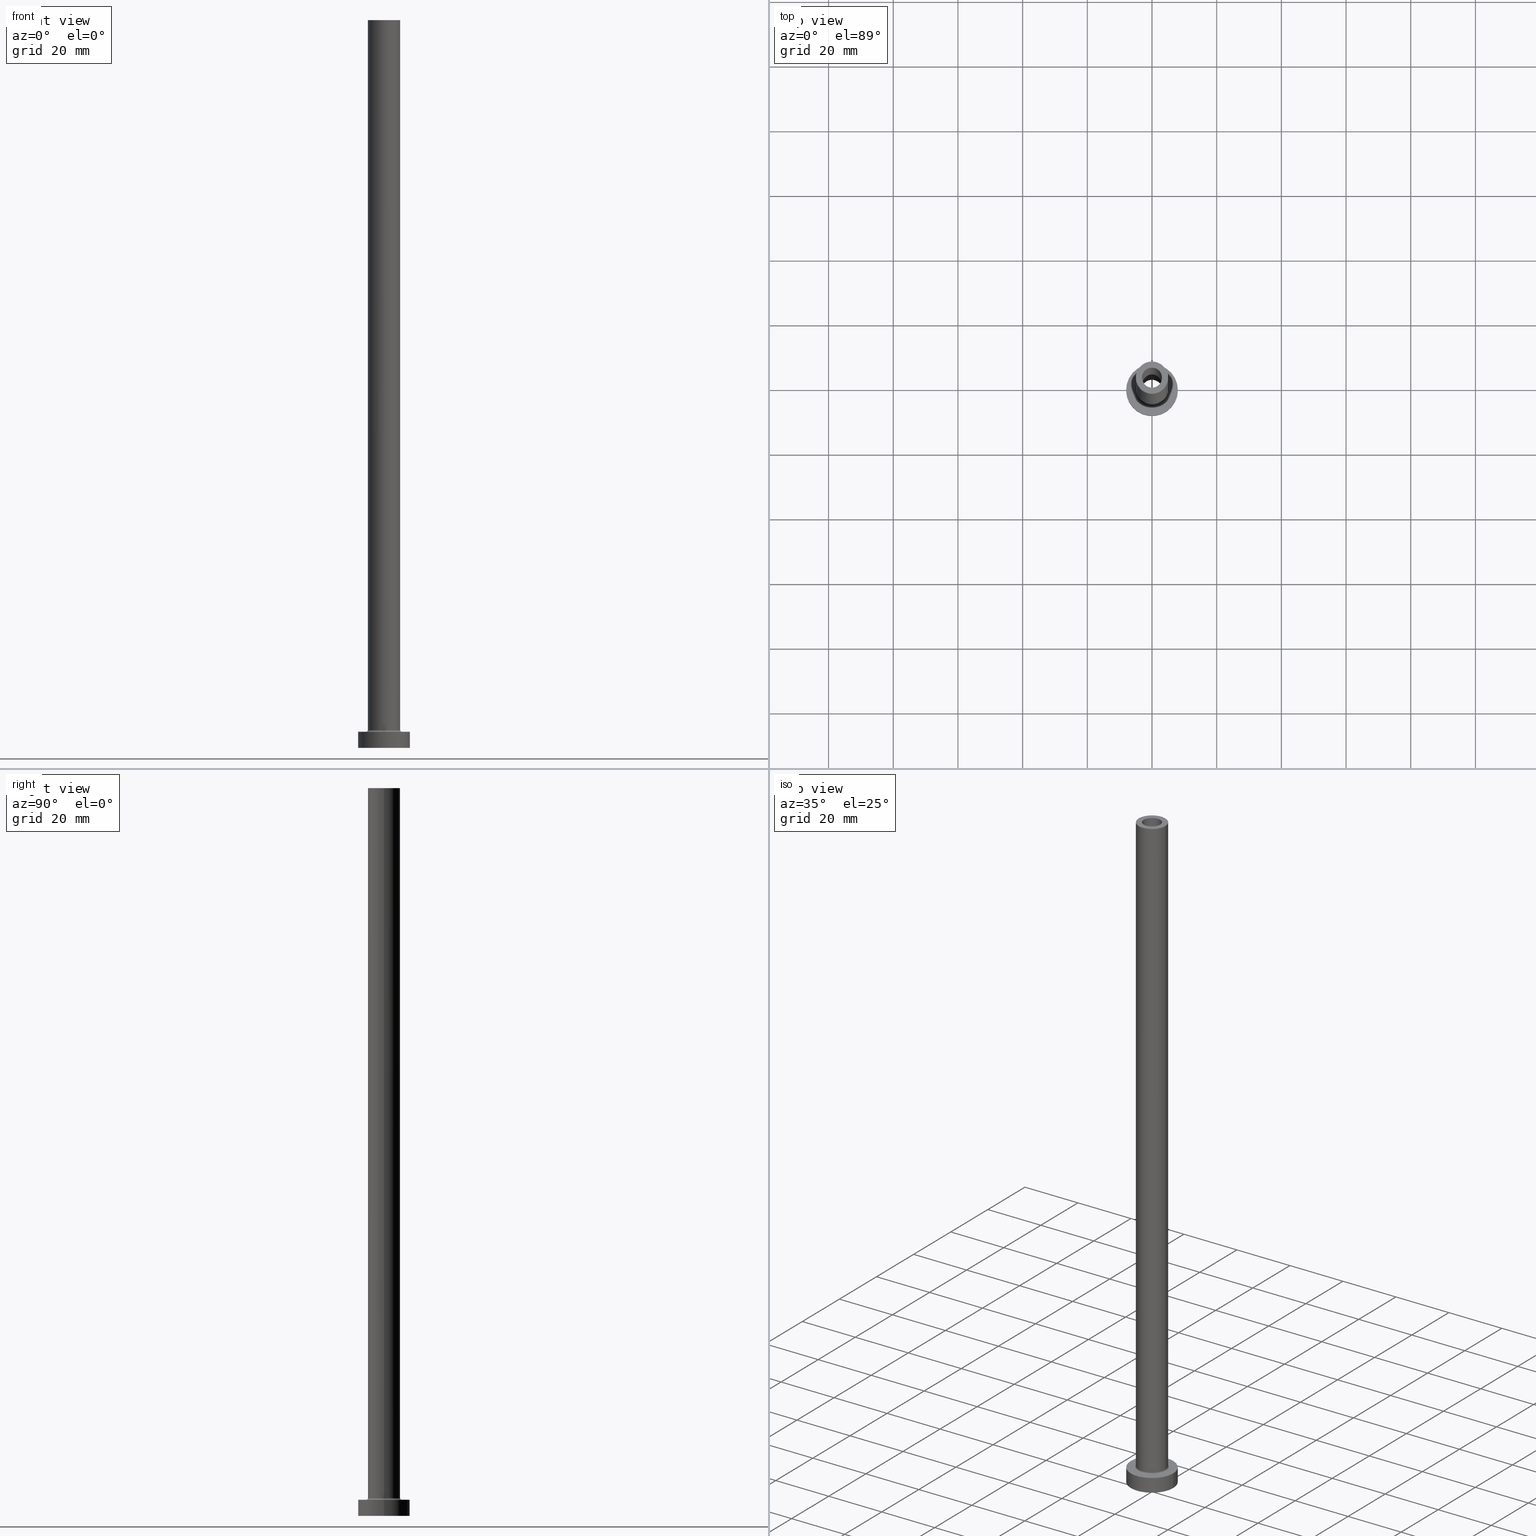
[diagram: canonical four-view strip — front | top / right | iso, engineering-drawing reading convention]
A machine part, canonical four-view strip (front | top / right | iso — engineering-drawing reading convention). The complete STEP part file that produces these views, byte-faithful:
ISO-10303-21;
HEADER;
FILE_DESCRIPTION (( 'STEP AP203' ),
    '1' );
FILE_NAME ('3576.STEP',
    '2023-02-13T14:31:41',
    ( '' ),
    ( '' ),
    'SwSTEP 2.0',
    'SolidWorks 2019',
    '' );
FILE_SCHEMA (( 'CONFIG_CONTROL_DESIGN' ));
ENDSEC;

DATA;
#1 = VERTEX_POINT ( 'NONE', #301 ) ;
#2 = CARTESIAN_POINT ( 'NONE',  ( 0.000000000000000000, 0.000000000000000000, 225.0000000000000000 ) ) ;
#3 = DIRECTION ( 'NONE',  ( 0.000000000000000000, 0.000000000000000000, -1.000000000000000000 ) ) ;
#4 = CARTESIAN_POINT ( 'NONE',  ( -3.250000000000000444, 0.000000000000000000, 0.000000000000000000 ) ) ;
#5 = ADVANCED_FACE ( 'NONE', ( #139 ), #453, .T. ) ;
#6 = APPLICATION_CONTEXT ( 'configuration controlled 3d designs of mechanical parts and assemblies' ) ;
#7 = CARTESIAN_POINT ( 'NONE',  ( 0.000000000000000000, 0.000000000000000000, 5.500000000000005329 ) ) ;
#8 = AXIS2_PLACEMENT_3D ( 'NONE', #438, #10, #245 ) ;
#9 = VECTOR ( 'NONE', #232, 1000.000000000000000 ) ;
#10 = DIRECTION ( 'NONE',  ( 0.000000000000000000, 0.000000000000000000, 1.000000000000000000 ) ) ;
#11 = CC_DESIGN_DATE_AND_TIME_ASSIGNMENT ( #145, #432, ( #94 ) ) ;
#12 = CIRCLE ( 'NONE', #402, 5.000000000000000000 ) ;
#13 = CARTESIAN_POINT ( 'NONE',  ( 0.000000000000000000, 0.000000000000000000, 5.500000000000005329 ) ) ;
#14 = APPROVAL_DATE_TIME ( #219, #366 ) ;
#15 = AXIS2_PLACEMENT_3D ( 'NONE', #361, #52, #441 ) ;
#16 = MANIFOLD_SOLID_BREP ( 'Odebrat vysunut�m4', #224 ) ;
#17 = EDGE_CURVE ( 'NONE', #101, #422, #287, .T. ) ;
#18 = CIRCLE ( 'NONE', #192, 8.000000000000000000 ) ;
#19 = DIRECTION ( 'NONE',  ( 1.000000000000000000, 0.000000000000000000, 0.000000000000000000 ) ) ;
#20 = EDGE_CURVE ( 'NONE', #416, #185, #341, .T. ) ;
#21 = DIRECTION ( 'NONE',  ( 1.000000000000000000, 0.000000000000000000, -0.000000000000000000 ) ) ;
#22 = CARTESIAN_POINT ( 'NONE',  ( -5.000000000000000000, 0.000000000000000000, 225.0000000000000000 ) ) ;
#23 = EDGE_LOOP ( 'NONE', ( #300, #226, #162, #29 ) ) ;
#24 = EDGE_CURVE ( 'NONE', #236, #260, #353, .T. ) ;
#25 = CARTESIAN_POINT ( 'NONE',  ( 0.000000000000000000, 0.000000000000000000, 5.500000000000005329 ) ) ;
#26 = ORIENTED_EDGE ( 'NONE', *, *, #179, .T. ) ;
#27 = VERTEX_POINT ( 'NONE', #389 ) ;
#28 = ORIENTED_EDGE ( 'NONE', *, *, #303, .T. ) ;
#29 = ORIENTED_EDGE ( 'NONE', *, *, #240, .T. ) ;
#30 = EDGE_LOOP ( 'NONE', ( #200, #199 ) ) ;
#31 = DIRECTION ( 'NONE',  ( 0.000000000000000000, 0.000000000000000000, 1.000000000000000000 ) ) ;
#32 = ORIENTED_EDGE ( 'NONE', *, *, #103, .T. ) ;
#33 = DIRECTION ( 'NONE',  ( 1.000000000000000000, 0.000000000000000000, 0.000000000000000000 ) ) ;
#34 = DIRECTION ( 'NONE',  ( 1.000000000000000000, 0.000000000000000000, 0.000000000000000000 ) ) ;
#35 = EDGE_CURVE ( 'NONE', #427, #1, #350, .T. ) ;
#36 = AXIS2_PLACEMENT_3D ( 'NONE', #395, #70, #212 ) ;
#37 = DIRECTION ( 'NONE',  ( 1.000000000000000000, 0.000000000000000000, 0.000000000000000000 ) ) ;
#38 = ORGANIZATION ( 'NEUR�EN�', 'NEUR�EN�', '' ) ;
#39 = FACE_BOUND ( 'NONE', #66, .T. ) ;
#40 = CARTESIAN_POINT ( 'NONE',  ( -8.000000000000000000, 0.000000000000000000, 5.000000000000000000 ) ) ;
#41 = COORDINATED_UNIVERSAL_TIME_OFFSET ( 1, 0, .AHEAD. ) ;
#42 = CIRCLE ( 'NONE', #125, 5.500000000000000000 ) ;
#43 = CALENDAR_DATE ( 2023, 13, 2 ) ;
#44 = DIRECTION ( 'NONE',  ( 1.000000000000000000, 0.000000000000000000, 0.000000000000000000 ) ) ;
#45 = EDGE_CURVE ( 'NONE', #93, #99, #325, .T. ) ;
#46 = CARTESIAN_POINT ( 'NONE',  ( 0.000000000000000000, 0.000000000000000000, 5.000000000000000000 ) ) ;
#47 = APPROVAL_ROLE ( '' ) ;
#48 = PERSON_AND_ORGANIZATION ( #364, #38 ) ;
#49 = EDGE_CURVE ( 'NONE', #304, #27, #60, .T. ) ;
#50 = CIRCLE ( 'NONE', #36, 8.000000000000000000 ) ;
#51 = PERSON_AND_ORGANIZATION_ROLE ( 'design_supplier' ) ;
#52 = DIRECTION ( 'NONE',  ( 0.000000000000000000, 0.000000000000000000, 1.000000000000000000 ) ) ;
#53 = DATE_AND_TIME ( #90, #72 ) ;
#54 = UNCERTAINTY_MEASURE_WITH_UNIT (LENGTH_MEASURE( 1.000000000000000082E-05 ), #109, 'distance_accuracy_value', 'NONE');
#55 = ORIENTED_EDGE ( 'NONE', *, *, #279, .F. ) ;
#56 = VERTEX_POINT ( 'NONE', #345 ) ;
#57 = EDGE_LOOP ( 'NONE', ( #238, #204 ) ) ;
#58 = ORIENTED_EDGE ( 'NONE', *, *, #240, .F. ) ;
#59 = ADVANCED_FACE ( 'NONE', ( #340 ), #172, .T. ) ;
#60 = LINE ( 'NONE', #40, #182 ) ;
#61 = DIRECTION ( 'NONE',  ( -1.000000000000000000, 0.000000000000000000, 0.000000000000000000 ) ) ;
#62 = EDGE_LOOP ( 'NONE', ( #331, #294 ) ) ;
#63 = LINE ( 'NONE', #205, #189 ) ;
#64 = ORIENTED_EDGE ( 'NONE', *, *, #198, .F. ) ;
#65 = AXIS2_PLACEMENT_3D ( 'NONE', #322, #76, #44 ) ;
#66 = EDGE_LOOP ( 'NONE', ( #164, #388 ) ) ;
#67 = ADVANCED_FACE ( 'NONE', ( #173, #269 ), #420, .F. ) ;
#68 = CARTESIAN_POINT ( 'NONE',  ( 0.000000000000000000, 0.000000000000000000, 5.000000000000000000 ) ) ;
#69 = DIRECTION ( 'NONE',  ( -1.000000000000000000, 1.224646799147351482E-16, 0.000000000000000000 ) ) ;
#70 = DIRECTION ( 'NONE',  ( 0.000000000000000000, 0.000000000000000000, 1.000000000000000000 ) ) ;
#71 = FACE_OUTER_BOUND ( 'NONE', #229, .T. ) ;
#72 = LOCAL_TIME ( 15, 31, 41.00000000000000000, #443 ) ;
#73 = DIRECTION ( 'NONE',  ( 0.000000000000000000, 0.000000000000000000, -1.000000000000000000 ) ) ;
#74 = CYLINDRICAL_SURFACE ( 'NONE', #153, 8.000000000000000000 ) ;
#75 = PERSON_AND_ORGANIZATION_ROLE ( 'creator' ) ;
#76 = DIRECTION ( 'NONE',  ( -0.000000000000000000, -0.000000000000000000, -1.000000000000000000 ) ) ;
#77 = AXIS2_PLACEMENT_3D ( 'NONE', #461, #424, #69 ) ;
#78 = CARTESIAN_POINT ( 'NONE',  ( -3.100000000000000089, 0.000000000000000000, 225.0000000000000000 ) ) ;
#79 = CARTESIAN_POINT ( 'NONE',  ( 0.000000000000000000, 0.000000000000000000, 180.0000000000000000 ) ) ;
#80 = CARTESIAN_POINT ( 'NONE',  ( 0.000000000000000000, 0.000000000000000000, 0.000000000000000000 ) ) ;
#81 = APPLICATION_PROTOCOL_DEFINITION ( 'international standard', 'config_control_design', 1994, #262 ) ;
#82 = EDGE_CURVE ( 'NONE', #122, #56, #423, .T. ) ;
#83 = DIRECTION ( 'NONE',  ( 0.000000000000000000, 0.000000000000000000, -1.000000000000000000 ) ) ;
#84 = CARTESIAN_POINT ( 'NONE',  ( 0.000000000000000000, 0.000000000000000000, 5.000000000000000000 ) ) ;
#85 = EDGE_CURVE ( 'NONE', #455, #95, #63, .T. ) ;
#86 = DIRECTION ( 'NONE',  ( 1.000000000000000000, 0.000000000000000000, 0.000000000000000000 ) ) ;
#87 = FACE_OUTER_BOUND ( 'NONE', #57, .T. ) ;
#88 = VECTOR ( 'NONE', #297, 1000.000000000000000 ) ;
#89 = VECTOR ( 'NONE', #146, 1000.000000000000000 ) ;
#90 = CALENDAR_DATE ( 2023, 13, 2 ) ;
#91 = ORIENTED_EDGE ( 'NONE', *, *, #82, .F. ) ;
#92 = AXIS2_PLACEMENT_3D ( 'NONE', #84, #188, #105 ) ;
#93 = VERTEX_POINT ( 'NONE', #78 ) ;
#94 = PRODUCT_DEFINITION ( 'NEZN�M�', '', #181, #414 ) ;
#95 = VERTEX_POINT ( 'NONE', #292 ) ;
#96 = DIRECTION ( 'NONE',  ( -0.000000000000000000, -0.000000000000000000, -1.000000000000000000 ) ) ;
#97 = CARTESIAN_POINT ( 'NONE',  ( 0.000000000000000000, 0.000000000000000000, 180.0000000000000000 ) ) ;
#98 = ORIENTED_EDGE ( 'NONE', *, *, #266, .F. ) ;
#99 = VERTEX_POINT ( 'NONE', #369 ) ;
#100 = CARTESIAN_POINT ( 'NONE',  ( 5.000000000000000000, 6.123233995736766282E-16, 225.0000000000000000 ) ) ;
#101 = VERTEX_POINT ( 'NONE', #332 ) ;
#102 = FACE_OUTER_BOUND ( 'NONE', #197, .T. ) ;
#103 = EDGE_CURVE ( 'NONE', #455, #236, #196, .T. ) ;
#104 = AXIS2_PLACEMENT_3D ( 'NONE', #25, #263, #19 ) ;
#105 = DIRECTION ( 'NONE',  ( 1.000000000000000000, 0.000000000000000000, 0.000000000000000000 ) ) ;
#106 = FACE_OUTER_BOUND ( 'NONE', #426, .T. ) ;
#107 = DIRECTION ( 'NONE',  ( 1.000000000000000000, 0.000000000000000000, 0.000000000000000000 ) ) ;
#108 = CARTESIAN_POINT ( 'NONE',  ( 0.000000000000000000, 0.000000000000000000, 5.000000000000000000 ) ) ;
#109 =( LENGTH_UNIT ( ) NAMED_UNIT ( * ) SI_UNIT ( .MILLI., .METRE. ) );
#110 = DIRECTION ( 'NONE',  ( 0.000000000000000000, 0.000000000000000000, 1.000000000000000000 ) ) ;
#111 = CARTESIAN_POINT ( 'NONE',  ( 0.000000000000000000, 0.000000000000000000, 180.0000000000000000 ) ) ;
#112 = APPROVAL_STATUS ( 'not_yet_approved' ) ;
#113 = PRODUCT_RELATED_PRODUCT_CATEGORY ( 'detail', '', ( #137 ) ) ;
#114 = DIRECTION ( 'NONE',  ( 1.000000000000000000, 0.000000000000000000, 0.000000000000000000 ) ) ;
#115 = AXIS2_PLACEMENT_3D ( 'NONE', #46, #250, #398 ) ;
#116 = EDGE_CURVE ( 'NONE', #427, #122, #454, .T. ) ;
#117 = DIRECTION ( 'NONE',  ( -1.000000000000000000, 0.000000000000000000, 0.000000000000000000 ) ) ;
#118 = CALENDAR_DATE ( 2023, 13, 2 ) ;
#119 = LINE ( 'NONE', #144, #412 ) ;
#120 = PERSON_AND_ORGANIZATION_ROLE ( 'classification_officer' ) ;
#121 = APPROVAL_PERSON_ORGANIZATION ( #436, #190, #434 ) ;
#122 = VERTEX_POINT ( 'NONE', #222 ) ;
#123 = APPROVAL_ROLE ( '' ) ;
#124 = EDGE_CURVE ( 'NONE', #101, #304, #372, .T. ) ;
#125 = AXIS2_PLACEMENT_3D ( 'NONE', #356, #214, #392 ) ;
#126 = ORIENTED_EDGE ( 'NONE', *, *, #399, .T. ) ;
#127 = AXIS2_PLACEMENT_3D ( 'NONE', #311, #428, #37 ) ;
#128 = AXIS2_PLACEMENT_3D ( 'NONE', #111, #110, #143 ) ;
#129 = APPROVAL ( #447, 'NEUR�EN�' ) ;
#130 = ORIENTED_EDGE ( 'NONE', *, *, #198, .T. ) ;
#131 = FACE_BOUND ( 'NONE', #233, .T. ) ;
#132 = ORIENTED_EDGE ( 'NONE', *, *, #193, .T. ) ;
#133 = ORIENTED_EDGE ( 'NONE', *, *, #360, .T. ) ;
#134 = DIRECTION ( 'NONE',  ( 0.000000000000000000, 0.000000000000000000, 1.000000000000000000 ) ) ;
#135 = AXIS2_PLACEMENT_3D ( 'NONE', #108, #282, #228 ) ;
#136 = ORIENTED_EDGE ( 'NONE', *, *, #315, .F. ) ;
#137 = PRODUCT ( '3576', '3576', '', ( #148 ) ) ;
#138 = DIRECTION ( 'NONE',  ( 1.000000000000000000, 0.000000000000000000, 0.000000000000000000 ) ) ;
#139 = FACE_OUTER_BOUND ( 'NONE', #451, .T. ) ;
#140 = ORIENTED_EDGE ( 'NONE', *, *, #303, .F. ) ;
#141 = CC_DESIGN_APPROVAL ( #366, ( #181 ) ) ;
#142 = DIRECTION ( 'NONE',  ( -0.000000000000000000, -0.000000000000000000, -1.000000000000000000 ) ) ;
#143 = DIRECTION ( 'NONE',  ( 1.000000000000000000, 0.000000000000000000, 0.000000000000000000 ) ) ;
#144 = CARTESIAN_POINT ( 'NONE',  ( -3.100000000000000089, 0.000000000000000000, 225.0000000000000000 ) ) ;
#145 = DATE_AND_TIME ( #363, #157 ) ;
#146 = DIRECTION ( 'NONE',  ( 0.000000000000000000, 0.000000000000000000, -1.000000000000000000 ) ) ;
#147 = ADVANCED_FACE ( 'NONE', ( #313 ), #421, .F. ) ;
#148 = MECHANICAL_CONTEXT ( 'NONE', #6, 'mechanical' ) ;
#149 = CIRCLE ( 'NONE', #170, 3.100000000000000089 ) ;
#150 = DIRECTION ( 'NONE',  ( 0.000000000000000000, 0.000000000000000000, 1.000000000000000000 ) ) ;
#151 = PERSON_AND_ORGANIZATION ( #364, #38 ) ;
#152 = EDGE_CURVE ( 'NONE', #99, #93, #329, .T. ) ;
#153 = AXIS2_PLACEMENT_3D ( 'NONE', #68, #343, #348 ) ;
#154 = CARTESIAN_POINT ( 'NONE',  ( 0.000000000000000000, 0.000000000000000000, 225.0000000000000000 ) ) ;
#155 = CARTESIAN_POINT ( 'NONE',  ( 8.000000000000000000, 9.797174393178825657E-16, 0.000000000000000000 ) ) ;
#156 = ORIENTED_EDGE ( 'NONE', *, *, #281, .T. ) ;
#157 = LOCAL_TIME ( 15, 31, 41.00000000000000000, #41 ) ;
#158 = SHAPE_DEFINITION_REPRESENTATION ( #208, #275 ) ;
#159 = PLANE ( 'NONE',  #346 ) ;
#160 = DIRECTION ( 'NONE',  ( 0.000000000000000000, 0.000000000000000000, 1.000000000000000000 ) ) ;
#161 = CARTESIAN_POINT ( 'NONE',  ( -3.250000000000000444, 0.000000000000000000, 180.0000000000000000 ) ) ;
#162 = ORIENTED_EDGE ( 'NONE', *, *, #49, .T. ) ;
#163 = ORIENTED_EDGE ( 'NONE', *, *, #291, .T. ) ;
#164 = ORIENTED_EDGE ( 'NONE', *, *, #45, .F. ) ;
#165 = LOCAL_TIME ( 15, 31, 41.00000000000000000, #404 ) ;
#166 = ORIENTED_EDGE ( 'NONE', *, *, #24, .F. ) ;
#167 = DIRECTION ( 'NONE',  ( 0.000000000000000000, 0.000000000000000000, 1.000000000000000000 ) ) ;
#168 = FACE_OUTER_BOUND ( 'NONE', #458, .T. ) ;
#169 = DIRECTION ( 'NONE',  ( 1.000000000000000000, 0.000000000000000000, 0.000000000000000000 ) ) ;
#170 = AXIS2_PLACEMENT_3D ( 'NONE', #79, #437, #431 ) ;
#171 = ORIENTED_EDGE ( 'NONE', *, *, #116, .F. ) ;
#172 = CYLINDRICAL_SURFACE ( 'NONE', #406, 5.000000000000000000 ) ;
#173 = FACE_BOUND ( 'NONE', #277, .T. ) ;
#174 = CARTESIAN_POINT ( 'NONE',  ( 5.500000000000000000, 0.000000000000000000, 5.000000000000002665 ) ) ;
#175 = CC_DESIGN_PERSON_AND_ORGANIZATION_ASSIGNMENT ( #357, #248, ( #94 ) ) ;
#176 = AXIS2_PLACEMENT_3D ( 'NONE', #448, #160, #33 ) ;
#177 = DIRECTION ( 'NONE',  ( -1.000000000000000000, 0.000000000000000000, 0.000000000000000000 ) ) ;
#178 = CARTESIAN_POINT ( 'NONE',  ( 0.000000000000000000, 0.000000000000000000, 189.1923881554251068 ) ) ;
#179 = EDGE_CURVE ( 'NONE', #1, #416, #390, .T. ) ;
#180 = PERSON_AND_ORGANIZATION ( #364, #38 ) ;
#181 = PRODUCT_DEFINITION_FORMATION_WITH_SPECIFIED_SOURCE ( 'LIBOVOLN�', '', #137, .NOT_KNOWN. ) ;
#182 = VECTOR ( 'NONE', #386, 1000.000000000000000 ) ;
#183 = DATE_TIME_ROLE ( 'classification_date' ) ;
#184 = AXIS2_PLACEMENT_3D ( 'NONE', #411, #373, #21 ) ;
#185 = VERTEX_POINT ( 'NONE', #174 ) ;
#186 = ORIENTED_EDGE ( 'NONE', *, *, #82, .T. ) ;
#187 = ADVANCED_FACE ( 'NONE', ( #102 ), #239, .F. ) ;
#188 = DIRECTION ( 'NONE',  ( -0.000000000000000000, -0.000000000000000000, -1.000000000000000000 ) ) ;
#189 = VECTOR ( 'NONE', #258, 1000.000000000000000 ) ;
#190 = APPROVAL ( #326, 'NEUR�EN�' ) ;
#191 = PLANE ( 'NONE',  #184 ) ;
#192 = AXIS2_PLACEMENT_3D ( 'NONE', #235, #383, #169 ) ;
#193 = EDGE_CURVE ( 'NONE', #227, #349, #149, .T. ) ;
#194 = CARTESIAN_POINT ( 'NONE',  ( -5.500000000000000000, 6.735557395310442023E-16, 5.000000000000002665 ) ) ;
#195 = FACE_OUTER_BOUND ( 'NONE', #307, .T. ) ;
#196 = CIRCLE ( 'NONE', #15, 3.250000000000000444 ) ;
#197 = EDGE_LOOP ( 'NONE', ( #413, #452, #380, #55 ) ) ;
#198 = EDGE_CURVE ( 'NONE', #422, #27, #374, .T. ) ;
#199 = ORIENTED_EDGE ( 'NONE', *, *, #399, .F. ) ;
#200 = ORIENTED_EDGE ( 'NONE', *, *, #281, .F. ) ;
#201 = ORIENTED_EDGE ( 'NONE', *, *, #35, .T. ) ;
#202 = DIRECTION ( 'NONE',  ( 0.000000000000000000, 0.000000000000000000, -1.000000000000000000 ) ) ;
#203 = EDGE_CURVE ( 'NONE', #1, #56, #358, .T. ) ;
#204 = ORIENTED_EDGE ( 'NONE', *, *, #355, .T. ) ;
#205 = CARTESIAN_POINT ( 'NONE',  ( 3.250000000000000444, 3.980102097228897245E-16, 189.1923881554251068 ) ) ;
#206 = ORIENTED_EDGE ( 'NONE', *, *, #85, .F. ) ;
#207 = CIRCLE ( 'NONE', #128, 3.100000000000000089 ) ;
#208 = PRODUCT_DEFINITION_SHAPE ( 'NONE', 'NONE',  #94 ) ;
#209 = ORIENTED_EDGE ( 'NONE', *, *, #362, .F. ) ;
#210 = CC_DESIGN_PERSON_AND_ORGANIZATION_ASSIGNMENT ( #216, #120, ( #385 ) ) ;
#211 = VECTOR ( 'NONE', #237, 1000.000000000000000 ) ;
#212 = DIRECTION ( 'NONE',  ( 1.000000000000000000, 0.000000000000000000, 0.000000000000000000 ) ) ;
#213 = APPLICATION_PROTOCOL_DEFINITION ( 'international standard', 'config_control_design', 1994, #6 ) ;
#214 = DIRECTION ( 'NONE',  ( -0.000000000000000000, -0.000000000000000000, -1.000000000000000000 ) ) ;
#215 = AXIS2_PLACEMENT_3D ( 'NONE', #80, #280, #107 ) ;
#216 = PERSON_AND_ORGANIZATION ( #364, #38 ) ;
#217 = DATE_AND_TIME ( #118, #218 ) ;
#218 = LOCAL_TIME ( 15, 31, 41.00000000000000000, #321 ) ;
#219 = DATE_AND_TIME ( #400, #165 ) ;
#220 = DIRECTION ( 'NONE',  ( 0.000000000000000000, 0.000000000000000000, 1.000000000000000000 ) ) ;
#221 = SECURITY_CLASSIFICATION_LEVEL ( 'unclassified' ) ;
#222 = CARTESIAN_POINT ( 'NONE',  ( 5.000000000000000000, 6.123233995736766282E-16, 225.0000000000000000 ) ) ;
#223 = CC_DESIGN_SECURITY_CLASSIFICATION ( #385, ( #181 ) ) ;
#224 = CLOSED_SHELL ( 'NONE', ( #187, #327, #459, #5, #338, #254, #225, #253, #59, #401, #440, #147, #67, #376 ) ) ;
#225 = ADVANCED_FACE ( 'NONE', ( #131, #168 ), #336, .T. ) ;
#226 = ORIENTED_EDGE ( 'NONE', *, *, #360, .F. ) ;
#227 = VERTEX_POINT ( 'NONE', #268 ) ;
#228 = DIRECTION ( 'NONE',  ( 1.000000000000000000, 0.000000000000000000, -0.000000000000000000 ) ) ;
#229 = EDGE_LOOP ( 'NONE', ( #98, #334, #384, #140 ) ) ;
#230 = AXIS2_PLACEMENT_3D ( 'NONE', #371, #444, #309 ) ;
#231 = ORIENTED_EDGE ( 'NONE', *, *, #203, .T. ) ;
#232 = DIRECTION ( 'NONE',  ( -0.000000000000000000, -0.000000000000000000, -1.000000000000000000 ) ) ;
#233 = EDGE_LOOP ( 'NONE', ( #278, #241 ) ) ;
#234 = CC_DESIGN_PERSON_AND_ORGANIZATION_ASSIGNMENT ( #365, #51, ( #181 ) ) ;
#235 = CARTESIAN_POINT ( 'NONE',  ( 0.000000000000000000, 0.000000000000000000, 5.000000000000000000 ) ) ;
#236 = VERTEX_POINT ( 'NONE', #161 ) ;
#237 = DIRECTION ( 'NONE',  ( -0.000000000000000000, -0.000000000000000000, -1.000000000000000000 ) ) ;
#238 = ORIENTED_EDGE ( 'NONE', *, *, #116, .T. ) ;
#239 = CYLINDRICAL_SURFACE ( 'NONE', #367, 3.100000000000000089 ) ;
#240 = EDGE_CURVE ( 'NONE', #27, #422, #50, .T. ) ;
#241 = ORIENTED_EDGE ( 'NONE', *, *, #20, .T. ) ;
#242 = CARTESIAN_POINT ( 'NONE',  ( -3.250000000000000444, 0.000000000000000000, 189.1923881554251068 ) ) ;
#243 = CIRCLE ( 'NONE', #215, 3.250000000000000444 ) ;
#244 = FACE_OUTER_BOUND ( 'NONE', #23, .T. ) ;
#245 = DIRECTION ( 'NONE',  ( 1.000000000000000000, 0.000000000000000000, 0.000000000000000000 ) ) ;
#246 = DIRECTION ( 'NONE',  ( 0.000000000000000000, 0.000000000000000000, -1.000000000000000000 ) ) ;
#247 = TOROIDAL_SURFACE ( 'NONE', #439, 5.500000000000000000, 0.5000000000000000000 ) ;
#248 = PERSON_AND_ORGANIZATION_ROLE ( 'creator' ) ;
#249 = AXIS2_PLACEMENT_3D ( 'NONE', #408, #220, #296 ) ;
#250 = DIRECTION ( 'NONE',  ( -0.000000000000000000, -0.000000000000000000, -1.000000000000000000 ) ) ;
#251 = DIRECTION ( 'NONE',  ( 0.000000000000000000, 0.000000000000000000, 1.000000000000000000 ) ) ;
#252 = FACE_OUTER_BOUND ( 'NONE', #302, .T. ) ;
#253 = ADVANCED_FACE ( 'NONE', ( #295, #195 ), #159, .F. ) ;
#254 = ADVANCED_FACE ( 'NONE', ( #244 ), #316, .T. ) ;
#255 = AXIS2_PLACEMENT_3D ( 'NONE', #418, #96, #276 ) ;
#256 = ORIENTED_EDGE ( 'NONE', *, *, #274, .T. ) ;
#257 = CIRCLE ( 'NONE', #65, 3.250000000000000444 ) ;
#258 = DIRECTION ( 'NONE',  ( 0.000000000000000000, 0.000000000000000000, -1.000000000000000000 ) ) ;
#259 = DIRECTION ( 'NONE',  ( 1.000000000000000000, 0.000000000000000000, -0.000000000000000000 ) ) ;
#260 = VERTEX_POINT ( 'NONE', #4 ) ;
#261 = ORIENTED_EDGE ( 'NONE', *, *, #203, .F. ) ;
#262 = APPLICATION_CONTEXT ( 'configuration controlled 3d designs of mechanical parts and assemblies' ) ;
#263 = DIRECTION ( 'NONE',  ( 0.000000000000000000, 0.000000000000000000, 1.000000000000000000 ) ) ;
#264 = AXIS2_PLACEMENT_3D ( 'NONE', #154, #409, #86 ) ;
#265 = CARTESIAN_POINT ( 'NONE',  ( 3.250000000000000444, 3.980102097228897245E-16, 180.0000000000000000 ) ) ;
#266 = EDGE_CURVE ( 'NONE', #99, #349, #403, .T. ) ;
#267 = ORIENTED_EDGE ( 'NONE', *, *, #124, .T. ) ;
#268 = CARTESIAN_POINT ( 'NONE',  ( -3.100000000000000089, 0.000000000000000000, 180.0000000000000000 ) ) ;
#269 = FACE_OUTER_BOUND ( 'NONE', #62, .T. ) ;
#270 = EDGE_LOOP ( 'NONE', ( #417, #344, #379, #272 ) ) ;
#271 = CIRCLE ( 'NONE', #318, 3.250000000000000444 ) ;
#272 = ORIENTED_EDGE ( 'NONE', *, *, #20, .F. ) ;
#273 = DIRECTION ( 'NONE',  ( 1.000000000000000000, 0.000000000000000000, -0.000000000000000000 ) ) ;
#274 = EDGE_CURVE ( 'NONE', #56, #1, #299, .T. ) ;
#275 = ADVANCED_BREP_SHAPE_REPRESENTATION ( '3576', ( #16, #8 ), #312 ) ;
#276 = DIRECTION ( 'NONE',  ( -1.000000000000000000, 0.000000000000000000, 0.000000000000000000 ) ) ;
#277 = EDGE_LOOP ( 'NONE', ( #132, #28 ) ) ;
#278 = ORIENTED_EDGE ( 'NONE', *, *, #315, .T. ) ;
#279 = EDGE_CURVE ( 'NONE', #93, #227, #119, .T. ) ;
#280 = DIRECTION ( 'NONE',  ( -0.000000000000000000, -0.000000000000000000, -1.000000000000000000 ) ) ;
#281 = EDGE_CURVE ( 'NONE', #260, #95, #243, .T. ) ;
#282 = DIRECTION ( 'NONE',  ( 0.000000000000000000, 0.000000000000000000, 1.000000000000000000 ) ) ;
#283 = DIRECTION ( 'NONE',  ( 0.000000000000000000, -1.000000000000000000, 0.000000000000000000 ) ) ;
#284 = DIRECTION ( 'NONE',  ( 1.000000000000000000, 0.000000000000000000, 0.000000000000000000 ) ) ;
#285 = CARTESIAN_POINT ( 'NONE',  ( 0.000000000000000000, 0.000000000000000000, 225.0000000000000000 ) ) ;
#286 = PERSON_AND_ORGANIZATION_ROLE ( 'design_owner' ) ;
#287 = LINE ( 'NONE', #351, #88 ) ;
#288 = AXIS2_PLACEMENT_3D ( 'NONE', #306, #3, #61 ) ;
#289 = DIRECTION ( 'NONE',  ( 1.000000000000000000, 0.000000000000000000, 0.000000000000000000 ) ) ;
#290 = APPROVAL_DATE_TIME ( #217, #190 ) ;
#291 = EDGE_CURVE ( 'NONE', #236, #455, #271, .T. ) ;
#292 = CARTESIAN_POINT ( 'NONE',  ( 3.250000000000000444, 3.980102097228897245E-16, 0.000000000000000000 ) ) ;
#293 = FACE_OUTER_BOUND ( 'NONE', #270, .T. ) ;
#294 = ORIENTED_EDGE ( 'NONE', *, *, #103, .F. ) ;
#295 = FACE_BOUND ( 'NONE', #30, .T. ) ;
#296 = DIRECTION ( 'NONE',  ( 1.000000000000000000, 0.000000000000000000, 0.000000000000000000 ) ) ;
#297 = DIRECTION ( 'NONE',  ( -0.000000000000000000, -0.000000000000000000, -1.000000000000000000 ) ) ;
#298 = CARTESIAN_POINT ( 'NONE',  ( 0.000000000000000000, 0.000000000000000000, 0.000000000000000000 ) ) ;
#299 = CIRCLE ( 'NONE', #442, 5.000000000000000000 ) ;
#300 = ORIENTED_EDGE ( 'NONE', *, *, #17, .F. ) ;
#301 = CARTESIAN_POINT ( 'NONE',  ( -5.000000000000000000, 0.000000000000000000, 5.500000000000005329 ) ) ;
#302 = EDGE_LOOP ( 'NONE', ( #261, #26, #136, #209 ) ) ;
#303 = EDGE_CURVE ( 'NONE', #349, #227, #207, .T. ) ;
#304 = VERTEX_POINT ( 'NONE', #323 ) ;
#305 = AXIS2_PLACEMENT_3D ( 'NONE', #285, #73, #177 ) ;
#306 = CARTESIAN_POINT ( 'NONE',  ( 0.000000000000000000, 0.000000000000000000, 189.1923881554251068 ) ) ;
#307 = EDGE_LOOP ( 'NONE', ( #58, #64 ) ) ;
#308 = CC_DESIGN_PERSON_AND_ORGANIZATION_ASSIGNMENT ( #407, #75, ( #181 ) ) ;
#309 = DIRECTION ( 'NONE',  ( 1.000000000000000000, 0.000000000000000000, 0.000000000000000000 ) ) ;
#310 = CARTESIAN_POINT ( 'NONE',  ( 0.000000000000000000, 0.000000000000000000, 225.0000000000000000 ) ) ;
#311 = CARTESIAN_POINT ( 'NONE',  ( 0.000000000000000000, 0.000000000000000000, 225.0000000000000000 ) ) ;
#312 =( GEOMETRIC_REPRESENTATION_CONTEXT ( 3 ) GLOBAL_UNCERTAINTY_ASSIGNED_CONTEXT ( ( #54 ) ) GLOBAL_UNIT_ASSIGNED_CONTEXT ( ( #109, #430, #330 ) ) REPRESENTATION_CONTEXT ( 'NONE', 'WORKASPACE' ) );
#313 = FACE_OUTER_BOUND ( 'NONE', #382, .T. ) ;
#314 = APPROVAL_PERSON_ORGANIZATION ( #180, #129, #123 ) ;
#315 = EDGE_CURVE ( 'NONE', #185, #416, #42, .T. ) ;
#316 = CYLINDRICAL_SURFACE ( 'NONE', #115, 8.000000000000000000 ) ;
#317 = CYLINDRICAL_SURFACE ( 'NONE', #333, 3.250000000000000444 ) ;
#318 = AXIS2_PLACEMENT_3D ( 'NONE', #394, #319, #284 ) ;
#319 = DIRECTION ( 'NONE',  ( 0.000000000000000000, 0.000000000000000000, 1.000000000000000000 ) ) ;
#320 = CYLINDRICAL_SURFACE ( 'NONE', #305, 3.100000000000000089 ) ;
#321 = COORDINATED_UNIVERSAL_TIME_OFFSET ( 1, 0, .AHEAD. ) ;
#322 = CARTESIAN_POINT ( 'NONE',  ( 0.000000000000000000, 0.000000000000000000, 0.000000000000000000 ) ) ;
#323 = CARTESIAN_POINT ( 'NONE',  ( -8.000000000000000000, 0.000000000000000000, 5.000000000000000000 ) ) ;
#324 = LOCAL_TIME ( 15, 31, 41.00000000000000000, #359 ) ;
#325 = CIRCLE ( 'NONE', #127, 3.100000000000000089 ) ;
#326 = APPROVAL_STATUS ( 'not_yet_approved' ) ;
#327 = ADVANCED_FACE ( 'NONE', ( #429 ), #317, .F. ) ;
#328 = CARTESIAN_POINT ( 'NONE',  ( 3.100000000000000089, 3.796405077356794918E-16, 225.0000000000000000 ) ) ;
#329 = CIRCLE ( 'NONE', #435, 3.100000000000000089 ) ;
#330 =( NAMED_UNIT ( * ) SI_UNIT ( $, .STERADIAN. ) SOLID_ANGLE_UNIT ( ) );
#331 = ORIENTED_EDGE ( 'NONE', *, *, #291, .F. ) ;
#332 = CARTESIAN_POINT ( 'NONE',  ( 8.000000000000000000, 9.797174393178825657E-16, 5.000000000000000000 ) ) ;
#333 = AXIS2_PLACEMENT_3D ( 'NONE', #178, #246, #397 ) ;
#334 = ORIENTED_EDGE ( 'NONE', *, *, #152, .T. ) ;
#335 = ORIENTED_EDGE ( 'NONE', *, *, #24, .T. ) ;
#336 = PLANE ( 'NONE',  #135 ) ;
#337 = ORIENTED_EDGE ( 'NONE', *, *, #85, .T. ) ;
#338 = ADVANCED_FACE ( 'NONE', ( #106 ), #74, .T. ) ;
#339 = ORIENTED_EDGE ( 'NONE', *, *, #17, .T. ) ;
#340 = FACE_OUTER_BOUND ( 'NONE', #381, .T. ) ;
#341 = CIRCLE ( 'NONE', #92, 5.500000000000000000 ) ;
#342 = EDGE_LOOP ( 'NONE', ( #163, #337, #126, #166 ) ) ;
#343 = DIRECTION ( 'NONE',  ( -0.000000000000000000, -0.000000000000000000, -1.000000000000000000 ) ) ;
#344 = ORIENTED_EDGE ( 'NONE', *, *, #274, .F. ) ;
#345 = CARTESIAN_POINT ( 'NONE',  ( 5.000000000000000000, 6.123233995736766282E-16, 5.500000000000005329 ) ) ;
#346 = AXIS2_PLACEMENT_3D ( 'NONE', #298, #450, #259 ) ;
#347 = CARTESIAN_POINT ( 'NONE',  ( 0.000000000000000000, 0.000000000000000000, 225.0000000000000000 ) ) ;
#348 = DIRECTION ( 'NONE',  ( -1.000000000000000000, 0.000000000000000000, 0.000000000000000000 ) ) ;
#349 = VERTEX_POINT ( 'NONE', #425 ) ;
#350 = LINE ( 'NONE', #457, #9 ) ;
#351 = CARTESIAN_POINT ( 'NONE',  ( 8.000000000000000000, 9.797174393178825657E-16, 5.000000000000000000 ) ) ;
#352 = CARTESIAN_POINT ( 'NONE',  ( 5.500000000000000000, 0.000000000000000000, 5.500000000000005329 ) ) ;
#353 = LINE ( 'NONE', #242, #377 ) ;
#354 = CC_DESIGN_APPROVAL ( #190, ( #94 ) ) ;
#355 = EDGE_CURVE ( 'NONE', #122, #427, #12, .T. ) ;
#356 = CARTESIAN_POINT ( 'NONE',  ( 0.000000000000000000, 0.000000000000000000, 5.000000000000000000 ) ) ;
#357 = PERSON_AND_ORGANIZATION ( #364, #38 ) ;
#358 = CIRCLE ( 'NONE', #176, 5.000000000000000000 ) ;
#359 = COORDINATED_UNIVERSAL_TIME_OFFSET ( 1, 0, .AHEAD. ) ;
#360 = EDGE_CURVE ( 'NONE', #304, #101, #18, .T. ) ;
#361 = CARTESIAN_POINT ( 'NONE',  ( 0.000000000000000000, 0.000000000000000000, 180.0000000000000000 ) ) ;
#362 = EDGE_CURVE ( 'NONE', #56, #185, #419, .T. ) ;
#363 = CALENDAR_DATE ( 2023, 13, 2 ) ;
#364 = PERSON ( 'NEUR�EN�', 'NEUR�EN�', 'NEUR�EN�', ('NEUR�EN�'), ('NEUR�EN�'), ('NEUR�EN�') ) ;
#365 = PERSON_AND_ORGANIZATION ( #364, #38 ) ;
#366 = APPROVAL ( #112, 'NEUR�EN�' ) ;
#367 = AXIS2_PLACEMENT_3D ( 'NONE', #347, #83, #117 ) ;
#368 = DATE_AND_TIME ( #43, #324 ) ;
#369 = CARTESIAN_POINT ( 'NONE',  ( 3.100000000000000089, 3.796405077356794918E-16, 225.0000000000000000 ) ) ;
#370 = APPROVAL_DATE_TIME ( #53, #129 ) ;
#371 = CARTESIAN_POINT ( 'NONE',  ( 0.000000000000000000, 0.000000000000000000, 5.000000000000000000 ) ) ;
#372 = CIRCLE ( 'NONE', #230, 8.000000000000000000 ) ;
#373 = DIRECTION ( 'NONE',  ( 0.000000000000000000, 0.000000000000000000, 1.000000000000000000 ) ) ;
#374 = CIRCLE ( 'NONE', #249, 8.000000000000000000 ) ;
#375 = ORIENTED_EDGE ( 'NONE', *, *, #355, .F. ) ;
#376 = ADVANCED_FACE ( 'NONE', ( #71 ), #320, .F. ) ;
#377 = VECTOR ( 'NONE', #202, 1000.000000000000000 ) ;
#378 = CC_DESIGN_PERSON_AND_ORGANIZATION_ASSIGNMENT ( #48, #286, ( #137 ) ) ;
#379 = ORIENTED_EDGE ( 'NONE', *, *, #362, .T. ) ;
#380 = ORIENTED_EDGE ( 'NONE', *, *, #193, .F. ) ;
#381 = EDGE_LOOP ( 'NONE', ( #91, #171, #201, #231 ) ) ;
#382 = EDGE_LOOP ( 'NONE', ( #206, #32, #335, #156 ) ) ;
#383 = DIRECTION ( 'NONE',  ( 0.000000000000000000, 0.000000000000000000, 1.000000000000000000 ) ) ;
#384 = ORIENTED_EDGE ( 'NONE', *, *, #279, .T. ) ;
#385 = SECURITY_CLASSIFICATION ( '', '', #221 ) ;
#386 = DIRECTION ( 'NONE',  ( -0.000000000000000000, -0.000000000000000000, -1.000000000000000000 ) ) ;
#387 = CC_DESIGN_DATE_AND_TIME_ASSIGNMENT ( #368, #183, ( #385 ) ) ;
#388 = ORIENTED_EDGE ( 'NONE', *, *, #152, .F. ) ;
#389 = CARTESIAN_POINT ( 'NONE',  ( -8.000000000000000000, 0.000000000000000000, 0.000000000000000000 ) ) ;
#390 = CIRCLE ( 'NONE', #77, 0.5000000000000004441 ) ;
#391 = DIRECTION ( 'NONE',  ( -1.000000000000000000, 0.000000000000000000, 0.000000000000000000 ) ) ;
#392 = DIRECTION ( 'NONE',  ( 1.000000000000000000, 0.000000000000000000, 0.000000000000000000 ) ) ;
#393 = CARTESIAN_POINT ( 'NONE',  ( 0.000000000000000000, 0.000000000000000000, 225.0000000000000000 ) ) ;
#394 = CARTESIAN_POINT ( 'NONE',  ( 0.000000000000000000, 0.000000000000000000, 180.0000000000000000 ) ) ;
#395 = CARTESIAN_POINT ( 'NONE',  ( 0.000000000000000000, 0.000000000000000000, 0.000000000000000000 ) ) ;
#396 = DIRECTION ( 'NONE',  ( 0.000000000000000000, 0.000000000000000000, -1.000000000000000000 ) ) ;
#397 = DIRECTION ( 'NONE',  ( -1.000000000000000000, 0.000000000000000000, 0.000000000000000000 ) ) ;
#398 = DIRECTION ( 'NONE',  ( -1.000000000000000000, 0.000000000000000000, 0.000000000000000000 ) ) ;
#399 = EDGE_CURVE ( 'NONE', #95, #260, #257, .T. ) ;
#400 = CALENDAR_DATE ( 2023, 13, 2 ) ;
#401 = ADVANCED_FACE ( 'NONE', ( #39, #87 ), #191, .T. ) ;
#402 = AXIS2_PLACEMENT_3D ( 'NONE', #310, #134, #34 ) ;
#403 = LINE ( 'NONE', #328, #89 ) ;
#404 = COORDINATED_UNIVERSAL_TIME_OFFSET ( 1, 0, .AHEAD. ) ;
#405 = DIRECTION ( 'NONE',  ( 0.000000000000000000, 0.000000000000000000, -1.000000000000000000 ) ) ;
#406 = AXIS2_PLACEMENT_3D ( 'NONE', #2, #142, #391 ) ;
#407 = PERSON_AND_ORGANIZATION ( #364, #38 ) ;
#408 = CARTESIAN_POINT ( 'NONE',  ( 0.000000000000000000, 0.000000000000000000, 0.000000000000000000 ) ) ;
#409 = DIRECTION ( 'NONE',  ( 0.000000000000000000, 0.000000000000000000, 1.000000000000000000 ) ) ;
#410 = ORIENTED_EDGE ( 'NONE', *, *, #124, .F. ) ;
#411 = CARTESIAN_POINT ( 'NONE',  ( 0.000000000000000000, 0.000000000000000000, 225.0000000000000000 ) ) ;
#412 = VECTOR ( 'NONE', #405, 1000.000000000000000 ) ;
#413 = ORIENTED_EDGE ( 'NONE', *, *, #45, .T. ) ;
#414 = DESIGN_CONTEXT ( 'detailed design', #262, 'design' ) ;
#415 = ORIENTED_EDGE ( 'NONE', *, *, #35, .F. ) ;
#416 = VERTEX_POINT ( 'NONE', #194 ) ;
#417 = ORIENTED_EDGE ( 'NONE', *, *, #179, .F. ) ;
#418 = CARTESIAN_POINT ( 'NONE',  ( 0.000000000000000000, 0.000000000000000000, 225.0000000000000000 ) ) ;
#419 = CIRCLE ( 'NONE', #456, 0.5000000000000004441 ) ;
#420 = PLANE ( 'NONE',  #446 ) ;
#421 = CYLINDRICAL_SURFACE ( 'NONE', #288, 3.250000000000000444 ) ;
#422 = VERTEX_POINT ( 'NONE', #155 ) ;
#423 = LINE ( 'NONE', #100, #211 ) ;
#424 = DIRECTION ( 'NONE',  ( 1.224646799147353207E-16, 1.000000000000000000, -0.000000000000000000 ) ) ;
#425 = CARTESIAN_POINT ( 'NONE',  ( 3.100000000000000089, 3.796405077356794918E-16, 180.0000000000000000 ) ) ;
#426 = EDGE_LOOP ( 'NONE', ( #410, #339, #130, #460 ) ) ;
#427 = VERTEX_POINT ( 'NONE', #22 ) ;
#428 = DIRECTION ( 'NONE',  ( 0.000000000000000000, 0.000000000000000000, 1.000000000000000000 ) ) ;
#429 = FACE_OUTER_BOUND ( 'NONE', #342, .T. ) ;
#430 =( NAMED_UNIT ( * ) PLANE_ANGLE_UNIT ( ) SI_UNIT ( $, .RADIAN. ) );
#431 = DIRECTION ( 'NONE',  ( 1.000000000000000000, 0.000000000000000000, 0.000000000000000000 ) ) ;
#432 = DATE_TIME_ROLE ( 'creation_date' ) ;
#433 = CC_DESIGN_APPROVAL ( #129, ( #385 ) ) ;
#434 = APPROVAL_ROLE ( '' ) ;
#435 = AXIS2_PLACEMENT_3D ( 'NONE', #393, #167, #138 ) ;
#436 = PERSON_AND_ORGANIZATION ( #364, #38 ) ;
#437 = DIRECTION ( 'NONE',  ( 0.000000000000000000, 0.000000000000000000, 1.000000000000000000 ) ) ;
#438 = CARTESIAN_POINT ( 'NONE',  ( 0.000000000000000000, 0.000000000000000000, 0.000000000000000000 ) ) ;
#439 = AXIS2_PLACEMENT_3D ( 'NONE', #7, #251, #114 ) ;
#440 = ADVANCED_FACE ( 'NONE', ( #293 ), #449, .F. ) ;
#441 = DIRECTION ( 'NONE',  ( 1.000000000000000000, 0.000000000000000000, 0.000000000000000000 ) ) ;
#442 = AXIS2_PLACEMENT_3D ( 'NONE', #13, #150, #289 ) ;
#443 = COORDINATED_UNIVERSAL_TIME_OFFSET ( 1, 0, .AHEAD. ) ;
#444 = DIRECTION ( 'NONE',  ( 0.000000000000000000, 0.000000000000000000, 1.000000000000000000 ) ) ;
#445 = APPROVAL_PERSON_ORGANIZATION ( #151, #366, #47 ) ;
#446 = AXIS2_PLACEMENT_3D ( 'NONE', #97, #31, #273 ) ;
#447 = APPROVAL_STATUS ( 'not_yet_approved' ) ;
#448 = CARTESIAN_POINT ( 'NONE',  ( 0.000000000000000000, 0.000000000000000000, 5.500000000000005329 ) ) ;
#449 = TOROIDAL_SURFACE ( 'NONE', #104, 5.500000000000000000, 0.5000000000000000000 ) ;
#450 = DIRECTION ( 'NONE',  ( 0.000000000000000000, 0.000000000000000000, 1.000000000000000000 ) ) ;
#451 = EDGE_LOOP ( 'NONE', ( #375, #186, #256, #415 ) ) ;
#452 = ORIENTED_EDGE ( 'NONE', *, *, #266, .T. ) ;
#453 = CYLINDRICAL_SURFACE ( 'NONE', #255, 5.000000000000000000 ) ;
#454 = CIRCLE ( 'NONE', #264, 5.000000000000000000 ) ;
#455 = VERTEX_POINT ( 'NONE', #265 ) ;
#456 = AXIS2_PLACEMENT_3D ( 'NONE', #352, #283, #396 ) ;
#457 = CARTESIAN_POINT ( 'NONE',  ( -5.000000000000000000, 0.000000000000000000, 225.0000000000000000 ) ) ;
#458 = EDGE_LOOP ( 'NONE', ( #133, #267 ) ) ;
#459 = ADVANCED_FACE ( 'NONE', ( #252 ), #247, .F. ) ;
#460 = ORIENTED_EDGE ( 'NONE', *, *, #49, .F. ) ;
#461 = CARTESIAN_POINT ( 'NONE',  ( -5.500000000000000000, 6.735557395310442023E-16, 5.500000000000005329 ) ) ;
ENDSEC;
END-ISO-10303-21;
